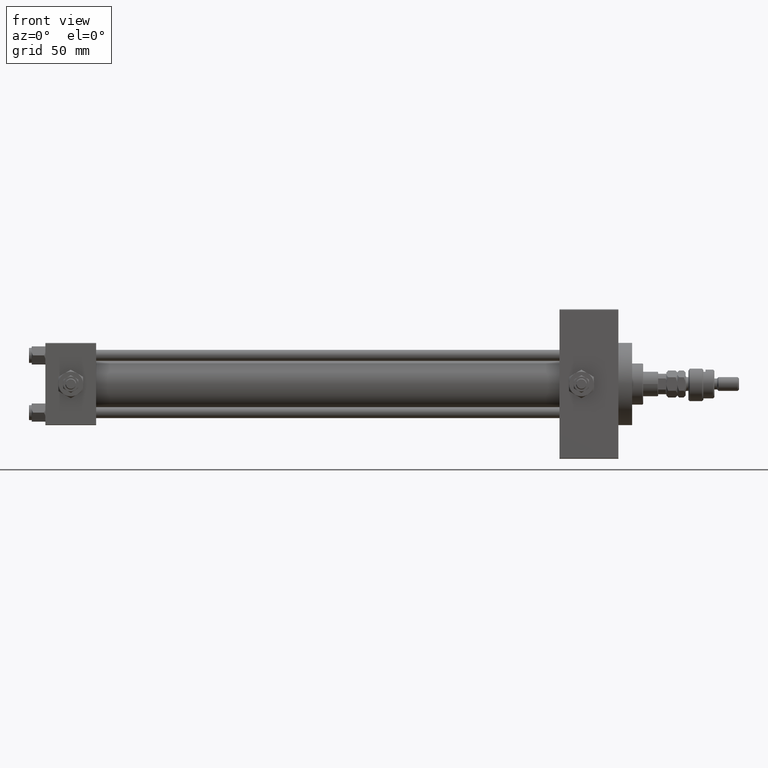
[diagram: clean part render]
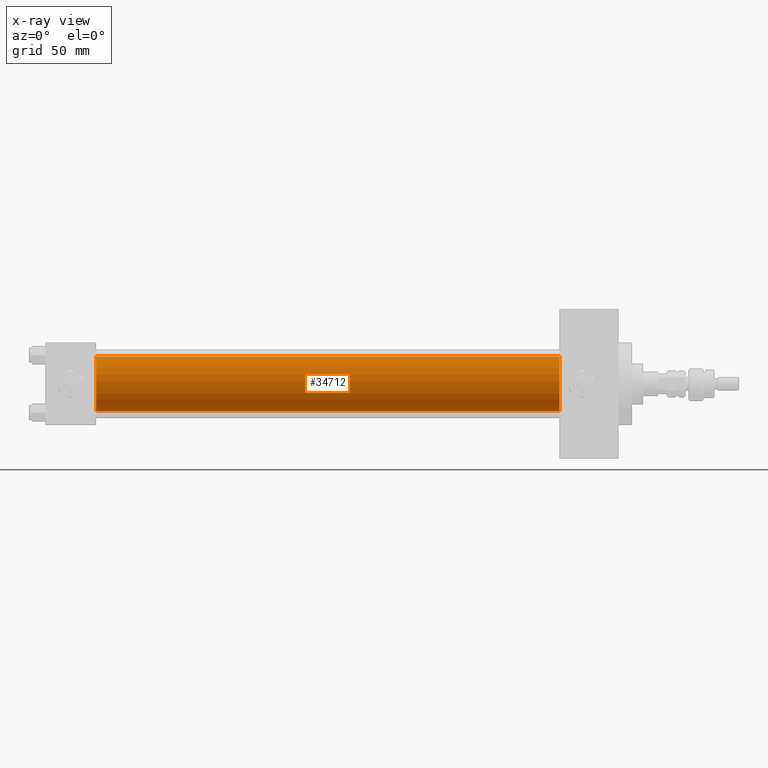
[diagram: x-ray — body ghosted, one internal face saturated and labeled with its STEP entity id]
A machine part, front view, then the same camera in x-ray: the body is ghosted and one INTERNAL B-rep face — a face not visible from any outside direction — is saturated and labeled: STEP entity #34712.
In plain terms, the highlighted cylindrical surface (edge-blend (fillet) strip) has radius 20 mm, axis along (-1, -0, -0).
Its self-contained STEP definition (entity closure, byte-faithful):
#2138 = CARTESIAN_POINT ( 'NONE',  ( 37.00000000000000000, -1.527916156705042519E-16, -20.00000000000000000 ) ) ;
#4848 = VECTOR ( 'NONE', #46698, 1000.000000000000000 ) ;
#5987 = CIRCLE ( 'NONE', #30362, 20.00000000000000000 ) ;
#7983 = CIRCLE ( 'NONE', #34079, 20.00000000000000000 ) ;
#8666 = DIRECTION ( 'NONE',  ( -1.000000000000000000, -0.000000000000000000, -0.000000000000000000 ) ) ;
#11879 = LINE ( 'NONE', #28455, #33887 ) ;
#14647 = ORIENTED_EDGE ( 'NONE', *, *, #16143, .T. ) ;
#15108 = DIRECTION ( 'NONE',  ( 0.000000000000000000, 0.000000000000000000, -1.000000000000000000 ) ) ;
#15806 = CARTESIAN_POINT ( 'NONE',  ( 37.00000000000000000, -2.602085213965210642E-15, 20.00000000000000000 ) ) ;
#16143 = EDGE_CURVE ( 'NONE', #28724, #23670, #30629, .T. ) ;
#18280 = ORIENTED_EDGE ( 'NONE', *, *, #19621, .T. ) ;
#18502 = CARTESIAN_POINT ( 'NONE',  ( 375.0000000000000000, -1.527916156705042519E-16, -20.00000000000000000 ) ) ;
#18530 = DIRECTION ( 'NONE',  ( 1.000000000000000000, 0.000000000000000000, 0.000000000000000000 ) ) ;
#19621 = EDGE_CURVE ( 'NONE', #40434, #28724, #5987, .T. ) ;
#19764 = CYLINDRICAL_SURFACE ( 'NONE', #36706, 20.00000000000000000 ) ;
#23670 = VERTEX_POINT ( 'NONE', #2138 ) ;
#23954 = EDGE_CURVE ( 'NONE', #40434, #30890, #11879, .T. ) ;
#28322 = EDGE_CURVE ( 'NONE', #30890, #23670, #7983, .T. ) ;
#28455 = CARTESIAN_POINT ( 'NONE',  ( 375.0000000000000000, -2.602085213965210642E-15, 20.00000000000000000 ) ) ;
#28724 = VERTEX_POINT ( 'NONE', #18502 ) ;
#30362 = AXIS2_PLACEMENT_3D ( 'NONE', #43782, #18530, #15108 ) ;
#30629 = LINE ( 'NONE', #45652, #4848 ) ;
#30890 = VERTEX_POINT ( 'NONE', #15806 ) ;
#31900 = ORIENTED_EDGE ( 'NONE', *, *, #28322, .F. ) ;
#33887 = VECTOR ( 'NONE', #44514, 1000.000000000000000 ) ;
#34079 = AXIS2_PLACEMENT_3D ( 'NONE', #37256, #42238, #45676 ) ;
#34712 = ADVANCED_FACE ( 'NONE', ( #44735 ), #19764, .F. ) ;
#35820 = CARTESIAN_POINT ( 'NONE',  ( 375.0000000000000000, -2.602085213965210642E-15, 0.000000000000000000 ) ) ;
#36706 = AXIS2_PLACEMENT_3D ( 'NONE', #35820, #8666, #51886 ) ;
#37256 = CARTESIAN_POINT ( 'NONE',  ( 37.00000000000000000, -2.602085213965210642E-15, 0.000000000000000000 ) ) ;
#40434 = VERTEX_POINT ( 'NONE', #50071 ) ;
#42238 = DIRECTION ( 'NONE',  ( 1.000000000000000000, 0.000000000000000000, 0.000000000000000000 ) ) ;
#43782 = CARTESIAN_POINT ( 'NONE',  ( 375.0000000000000000, -2.602085213965210642E-15, 0.000000000000000000 ) ) ;
#44514 = DIRECTION ( 'NONE',  ( -1.000000000000000000, -0.000000000000000000, -0.000000000000000000 ) ) ;
#44735 = FACE_OUTER_BOUND ( 'NONE', #50076, .T. ) ;
#45558 = ORIENTED_EDGE ( 'NONE', *, *, #23954, .F. ) ;
#45652 = CARTESIAN_POINT ( 'NONE',  ( 375.0000000000000000, -1.527916156705042519E-16, -20.00000000000000000 ) ) ;
#45676 = DIRECTION ( 'NONE',  ( 0.000000000000000000, 0.000000000000000000, -1.000000000000000000 ) ) ;
#46698 = DIRECTION ( 'NONE',  ( -1.000000000000000000, -0.000000000000000000, -0.000000000000000000 ) ) ;
#50071 = CARTESIAN_POINT ( 'NONE',  ( 375.0000000000000000, -2.602085213965210642E-15, 20.00000000000000000 ) ) ;
#50076 = EDGE_LOOP ( 'NONE', ( #18280, #14647, #31900, #45558 ) ) ;
#51886 = DIRECTION ( 'NONE',  ( 0.000000000000000000, 0.000000000000000000, 1.000000000000000000 ) ) ;